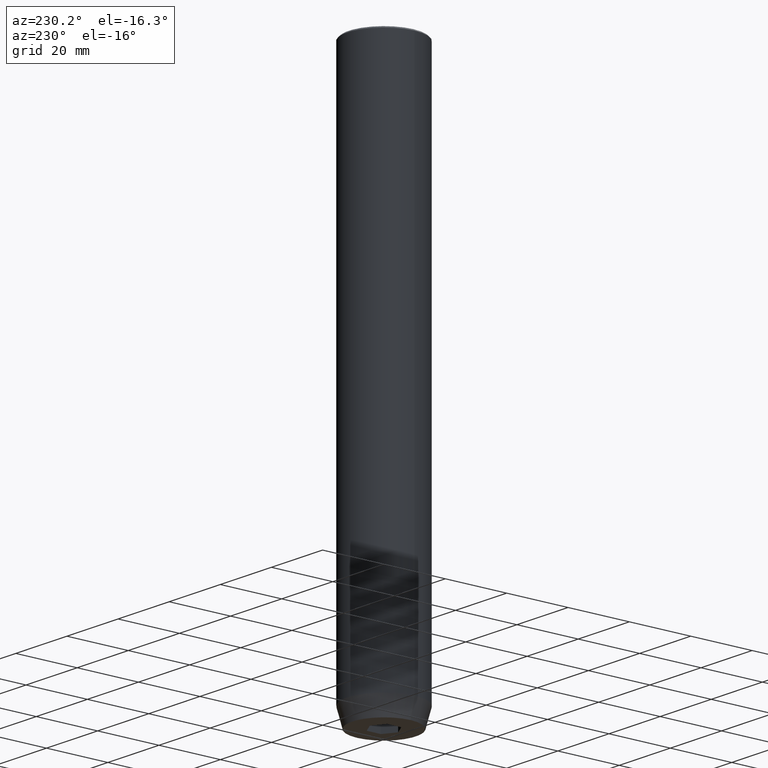
[diagram: clean part render]
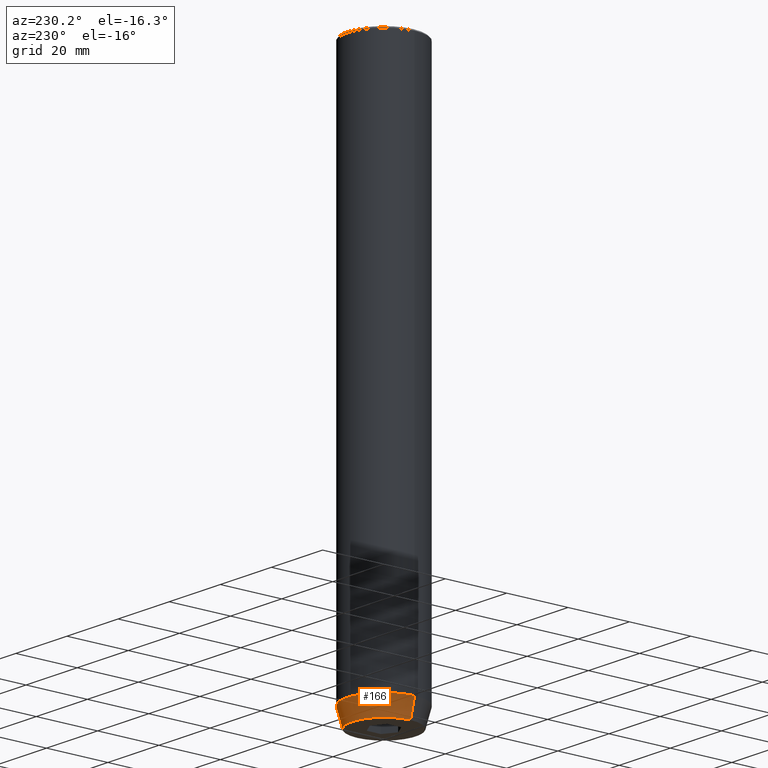
[diagram: same view with one face highlighted and labeled with its STEP entity id]
A machine part, auxiliary view. The second image highlights one B-rep face of the part: STEP entity #166.
In plain terms, the highlighted conical surface has half-angle 15 deg.
Its self-contained STEP definition (entity closure, byte-faithful):
#3 = CIRCLE ( 'NONE', #189, 12.00000000000000000 ) ;
#13 = EDGE_CURVE ( 'NONE', #545, #160, #3, .T. ) ;
#33 = DIRECTION ( 'NONE',  ( -0.000000000000000000, -0.000000000000000000, 1.000000000000000000 ) ) ;
#75 = CARTESIAN_POINT ( 'NONE',  ( 12.00000000000000000, 0.000000000000000000, -174.0000000000000000 ) ) ;
#81 = VECTOR ( 'NONE', #579, 1000.000000000000000 ) ;
#107 = DIRECTION ( 'NONE',  ( -0.000000000000000000, -0.000000000000000000, 1.000000000000000000 ) ) ;
#112 = AXIS2_PLACEMENT_3D ( 'NONE', #397, #107, #309 ) ;
#115 = CARTESIAN_POINT ( 'NONE',  ( 0.000000000000000000, 0.000000000000000000, -174.0000000000000000 ) ) ;
#123 = CIRCLE ( 'NONE', #171, 10.39230484541325872 ) ;
#129 = LINE ( 'NONE', #75, #81 ) ;
#130 = VERTEX_POINT ( 'NONE', #280 ) ;
#151 = DIRECTION ( 'NONE',  ( -0.2588190451025214056, 3.169619151431772953E-17, 0.9659258262890680902 ) ) ;
#160 = VERTEX_POINT ( 'NONE', #260 ) ;
#166 = ADVANCED_FACE ( 'NONE', ( #252 ), #388, .T. ) ;
#170 = DIRECTION ( 'NONE',  ( 1.000000000000000000, 0.000000000000000000, 0.000000000000000000 ) ) ;
#171 = AXIS2_PLACEMENT_3D ( 'NONE', #623, #33, #243 ) ;
#189 = AXIS2_PLACEMENT_3D ( 'NONE', #115, #229, #170 ) ;
#199 = CARTESIAN_POINT ( 'NONE',  ( 12.00000000000000000, 0.000000000000000000, -174.0000000000000000 ) ) ;
#212 = ORIENTED_EDGE ( 'NONE', *, *, #458, .T. ) ;
#215 = ORIENTED_EDGE ( 'NONE', *, *, #13, .F. ) ;
#229 = DIRECTION ( 'NONE',  ( -0.000000000000000000, -0.000000000000000000, 1.000000000000000000 ) ) ;
#243 = DIRECTION ( 'NONE',  ( 1.000000000000000000, 0.000000000000000000, 0.000000000000000000 ) ) ;
#252 = FACE_OUTER_BOUND ( 'NONE', #622, .T. ) ;
#260 = CARTESIAN_POINT ( 'NONE',  ( -12.00000000000000000, 1.469576158976823947E-15, -174.0000000000000000 ) ) ;
#280 = CARTESIAN_POINT ( 'NONE',  ( 10.39230484541325872, 0.000000000000000000, -180.0000000000000000 ) ) ;
#309 = DIRECTION ( 'NONE',  ( 1.000000000000000000, 0.000000000000000000, 0.000000000000000000 ) ) ;
#326 = CARTESIAN_POINT ( 'NONE',  ( -10.39230484541325872, 1.371133222723355777E-15, -180.0000000000000000 ) ) ;
#345 = VECTOR ( 'NONE', #151, 1000.000000000000000 ) ;
#388 = CONICAL_SURFACE ( 'NONE', #112, 12.00000000000000000, 0.2617993877991501295 ) ;
#395 = CARTESIAN_POINT ( 'NONE',  ( -12.00000000000000000, 1.469576158976823947E-15, -174.0000000000000000 ) ) ;
#397 = CARTESIAN_POINT ( 'NONE',  ( 0.000000000000000000, 0.000000000000000000, -174.0000000000000000 ) ) ;
#438 = ORIENTED_EDGE ( 'NONE', *, *, #442, .F. ) ;
#442 = EDGE_CURVE ( 'NONE', #130, #545, #129, .T. ) ;
#458 = EDGE_CURVE ( 'NONE', #130, #461, #123, .T. ) ;
#461 = VERTEX_POINT ( 'NONE', #326 ) ;
#545 = VERTEX_POINT ( 'NONE', #199 ) ;
#551 = EDGE_CURVE ( 'NONE', #461, #160, #638, .T. ) ;
#579 = DIRECTION ( 'NONE',  ( 0.2588190451025214056, 0.000000000000000000, 0.9659258262890680902 ) ) ;
#602 = ORIENTED_EDGE ( 'NONE', *, *, #551, .T. ) ;
#622 = EDGE_LOOP ( 'NONE', ( #212, #602, #215, #438 ) ) ;
#623 = CARTESIAN_POINT ( 'NONE',  ( 0.000000000000000000, 0.000000000000000000, -180.0000000000000000 ) ) ;
#638 = LINE ( 'NONE', #395, #345 ) ;